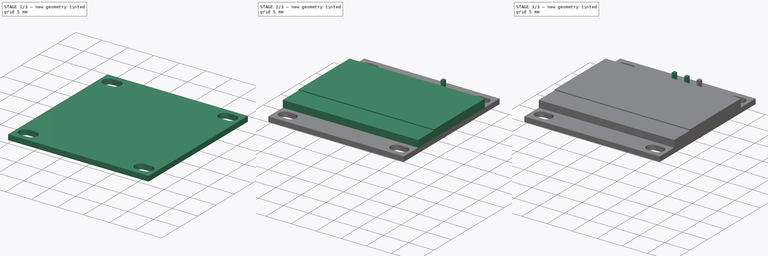
[diagram: build sequence overview — one tinted view per stage of 3, left to right]
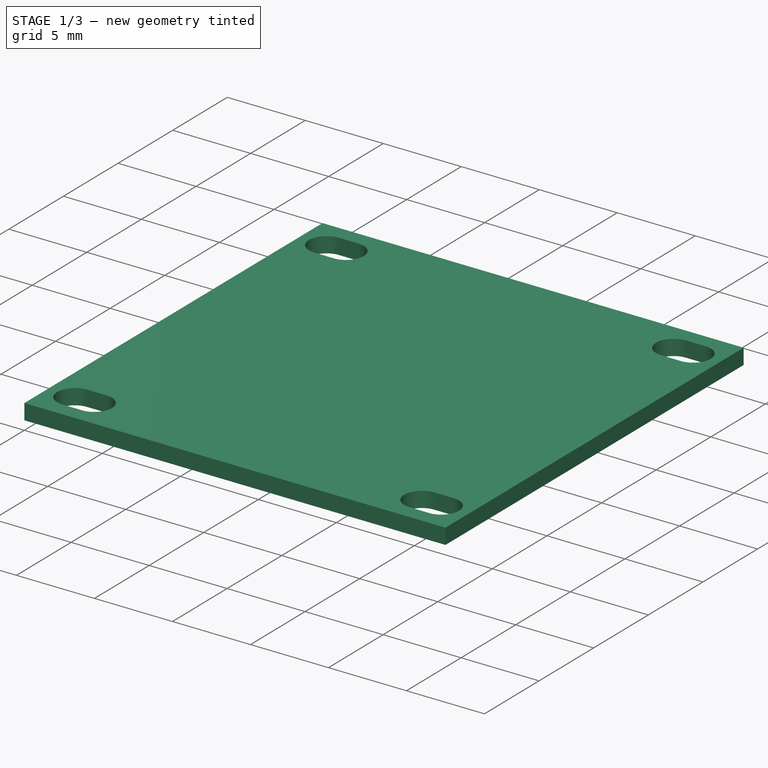
[diagram: stage 1 of 3 — iso view after this stage's code; geometry added in this stage tinted green]
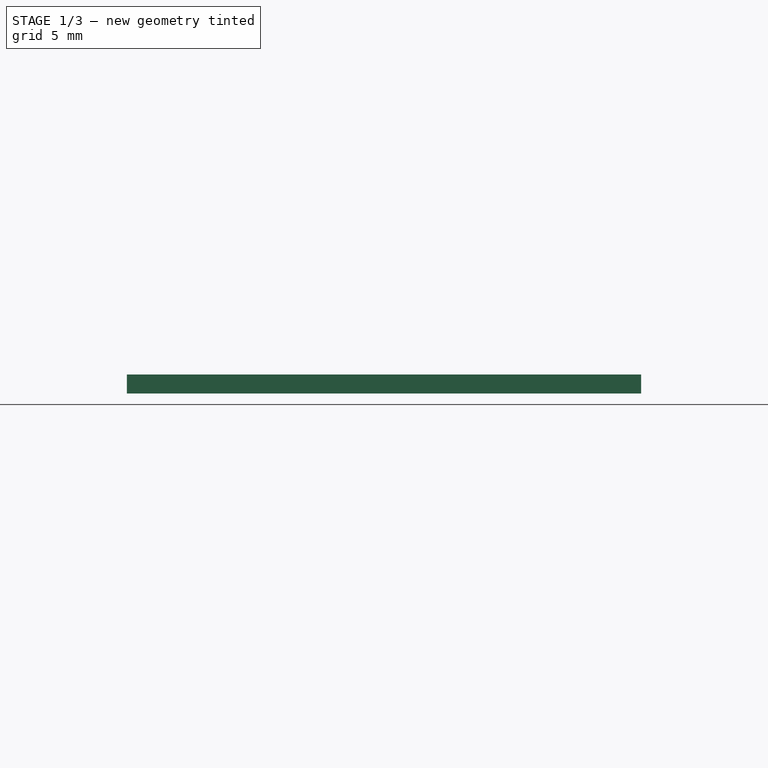
[diagram: stage 1 of 3 — front view after this stage's code; geometry added in this stage tinted green]
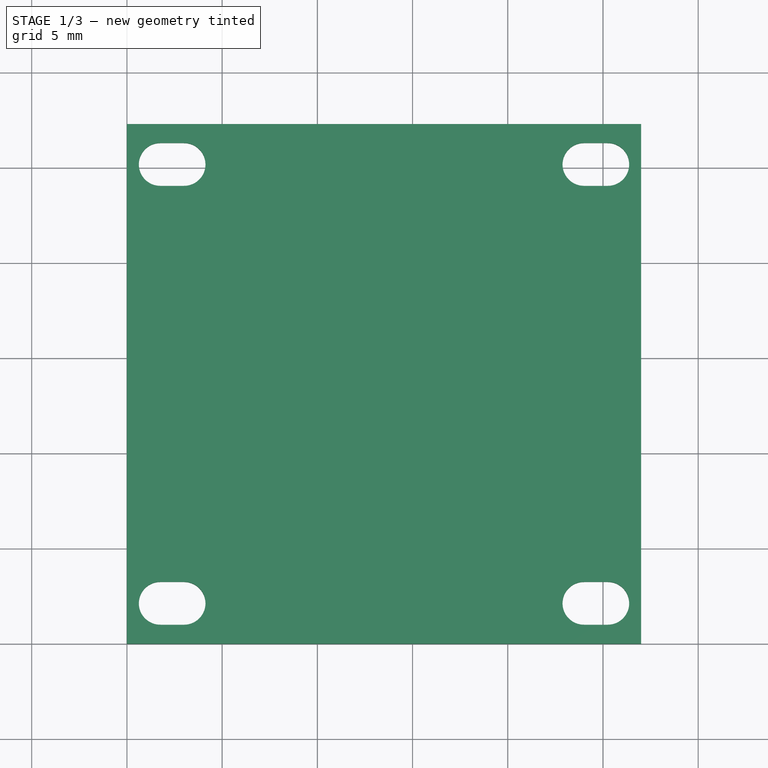
[diagram: stage 1 of 3 — top view after this stage's code; geometry added in this stage tinted green]
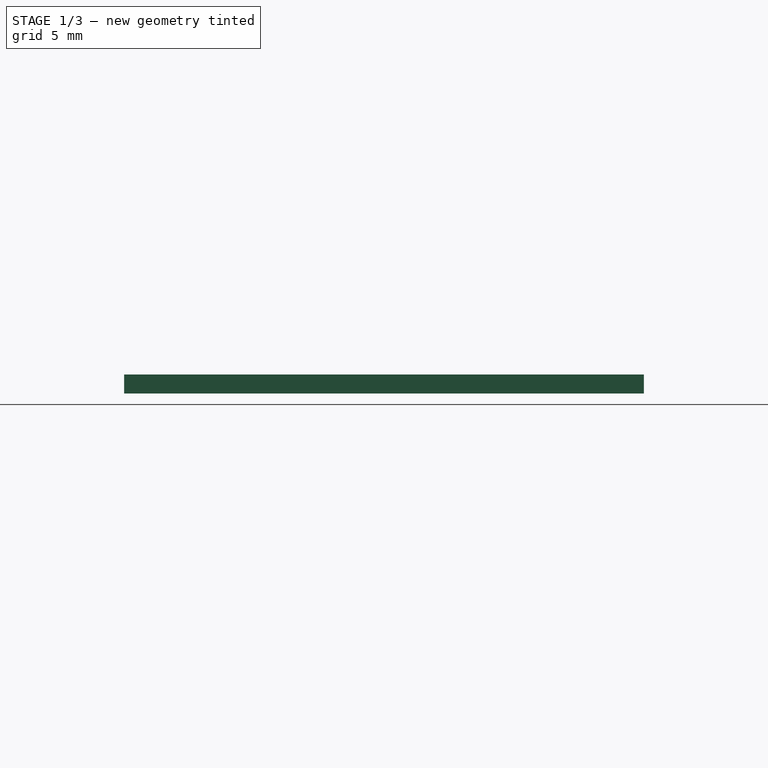
[diagram: stage 1 of 3 — right view after this stage's code; geometry added in this stage tinted green]
FCSTD DOCUMENT  (FreeCAD 0.16R6612 (Git))
Label: OLED
License: All rights reserved
LicenseURL: http://en.wikipedia.org/wiki/All_rights_reserved
objects: Sketcher::SketchObject×4, Part::FeaturePython×3, PartDesign::Pad×2, PartDesign::Pocket×2, Part::Feature×1
note: 16 computed .brp shape members not serialized (recipe doc carries the construction recipe); baked Part::Feature solids carry a one-line shape summary decoded from their .brp

FEATURE [Sketcher::SketchObject] Sketch
  sketch-geometry (4):
    g0: LineSegment StartX=0 StartY=0 StartZ=0 EndX=27 EndY=0 EndZ=0
    g1: LineSegment StartX=27 StartY=0 StartZ=0 EndX=27 EndY=27.3 EndZ=0
    g2: LineSegment StartX=27 StartY=27.3 StartZ=0 EndX=0 EndY=27.3 EndZ=0
    g3: LineSegment StartX=0 StartY=27.3 StartZ=0 EndX=0 EndY=0 EndZ=0
  constraints (11):
    c: Coincident(g0,g1)
    c: Coincident(g1,g2)
    c: Coincident(g2,g3)
    c: Coincident(g3,g0)
    c: Horizontal(g0)
    c: Horizontal(g2)
    c: Vertical(g1)
    c: Vertical(g3)
    c: Coincident(g0,g-1)
    c: DistanceX(g2) = -27
    c: DistanceY(g1) = 27.3
FEATURE [PartDesign::Pad] Pad
  Length = 1
  Length2 = 100
  Sketch = -> Sketch
  Type = 0
FEATURE [Sketcher::SketchObject] Sketch001
  ExternalGeometry = -> [Pad]
  Placement = pos=(0,0,1) rot=(0,0,1;0rad)
  Support = -> Pad [Face6]
  sketch-geometry (16):
    g0: ArcOfCircle CenterX=1.75 CenterY=25.175 CenterZ=0 NormalX=0 NormalY=0 NormalZ=1 Radius=1.125 StartAngle=1.5708 EndAngle=4.71239
    g1: ArcOfCircle CenterX=3 CenterY=25.175 CenterZ=0 NormalX=0 NormalY=0 NormalZ=1 Radius=1.125 StartAngle=4.71239 EndAngle=7.85398
    g2: LineSegment StartX=1.75 StartY=24.05 StartZ=0 EndX=3 EndY=24.05 EndZ=0
    g3: LineSegment StartX=1.75 StartY=26.3 StartZ=0 EndX=3 EndY=26.3 EndZ=0
    g4: ArcOfCircle CenterX=24 CenterY=25.175 CenterZ=0 NormalX=0 NormalY=0 NormalZ=1 Radius=1.125 StartAngle=1.5708 EndAngle=4.71239
    g5: ArcOfCircle CenterX=25.25 CenterY=25.175 CenterZ=0 NormalX=0 NormalY=0 NormalZ=1 Radius=1.125 StartAngle=4.71239 EndAngle=7.85398
    g6: LineSegment StartX=24 StartY=24.05 StartZ=0 EndX=25.25 EndY=24.05 EndZ=0
    g7: LineSegment StartX=24 StartY=26.3 StartZ=0 EndX=25.25 EndY=26.3 EndZ=0
    g8: ArcOfCircle CenterX=1.75 CenterY=2.125 CenterZ=0 NormalX=0 NormalY=0 NormalZ=1 Radius=1.125 StartAngle=1.5708 EndAngle=4.71239
    g9: ArcOfCircle CenterX=3 CenterY=2.125 CenterZ=0 NormalX=0 NormalY=0 NormalZ=1 Radius=1.125 StartAngle=4.71239 EndAngle=7.85398
    g10: LineSegment StartX=1.75 StartY=1 StartZ=0 EndX=3 EndY=1 EndZ=0
    g11: LineSegment StartX=1.75 StartY=3.25 StartZ=0 EndX=3 EndY=3.25 EndZ=0
    g12: ArcOfCircle CenterX=24 CenterY=2.125 CenterZ=0 NormalX=0 NormalY=0 NormalZ=1 Radius=1.125 StartAngle=1.5708 EndAngle=4.71239
    g13: ArcOfCircle CenterX=25.25 CenterY=2.125 CenterZ=0 NormalX=0 NormalY=0 NormalZ=1 Radius=1.125 StartAngle=4.71239 EndAngle=7.85398
    g14: LineSegment StartX=24 StartY=1 StartZ=0 EndX=25.25 EndY=1 EndZ=0
    g15: LineSegment StartX=24 StartY=3.25 StartZ=0 EndX=25.25 EndY=3.25 EndZ=0
  constraints (40):
    c: Tangent(g0,g3) = 1.5708
    c: Tangent(g0,g2) = -1.5708
    c: Tangent(g2,g1) = -1.5708
    c: Tangent(g3,g1) = 1.5708
    c: Horizontal(g2)
    c: Equal(g0,g1)
    c: DistanceY(g0,g0) = -2.25
    c: DistanceX(g0,g1) = 1.25
    c: DistanceY(g-3,g0) = -1
    c: DistanceX(g0,g-3) = -1.75
    c: Tangent(g4,g7) = 1.5708
    c: Tangent(g4,g6) = -1.5708
    c: Tangent(g6,g5) = -1.5708
    c: Tangent(g7,g5) = 1.5708
    c: Horizontal(g6)
    c: Equal(g4,g5)
    c: Equal(g6,g2)
    c: Equal(g4,g0)
    c: DistanceX(g-3,g5) = -1.75
    c: DistanceY(g5,g-3) = 1
    c: Tangent(g8,g11) = 1.5708
    c: Tangent(g8,g10) = -1.5708
    c: Tangent(g10,g9) = -1.5708
    c: Tangent(g11,g9) = 1.5708
    c: Horizontal(g10)
    c: Equal(g8,g9)
    c: Equal(g2,g11)
    c: Equal(g9,g0)
    c: DistanceX(g-1,g8) = 1.75
    c: DistanceY(g-1,g8) = 1
    c: Tangent(g12,g15) = 1.5708
    c: Tangent(g12,g14) = -1.5708
    c: Tangent(g14,g13) = -1.5708
    c: Tangent(g15,g13) = 1.5708
    c: Horizontal(g14)
    c: Equal(g12,g13)
    c: Equal(g15,g10)
    c: Equal(g12,g9)
    c: DistanceX(g13,g-4) = 1.75
    c: DistanceY(g13,g-4) = -1
FEATURE [PartDesign::Pocket] Pocket
  Length = 5
  Sketch = -> Sketch001
  Type = 1
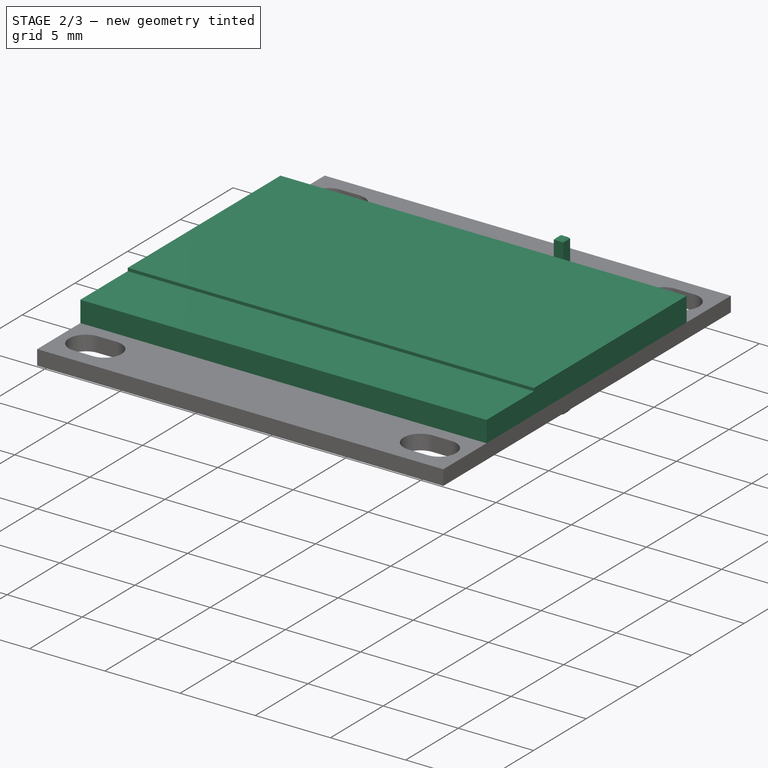
[diagram: stage 2 of 3 — iso view after this stage's code; geometry added in this stage tinted green]
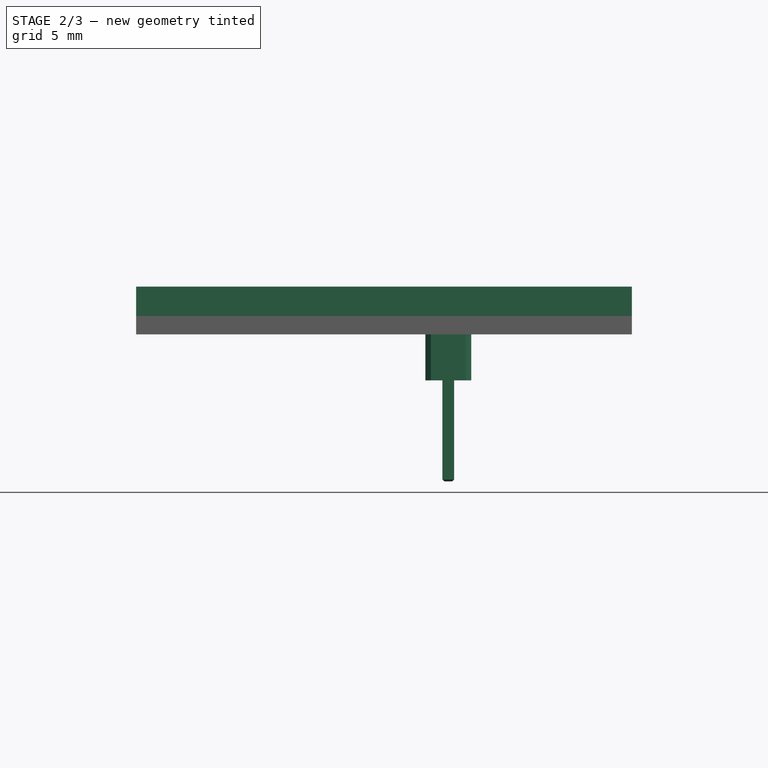
[diagram: stage 2 of 3 — front view after this stage's code; geometry added in this stage tinted green]
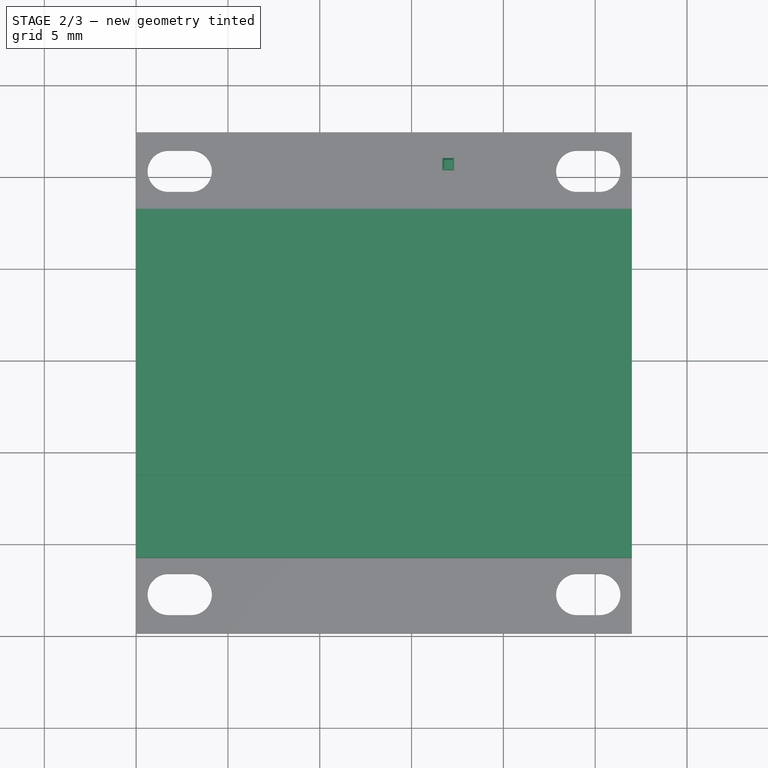
[diagram: stage 2 of 3 — top view after this stage's code; geometry added in this stage tinted green]
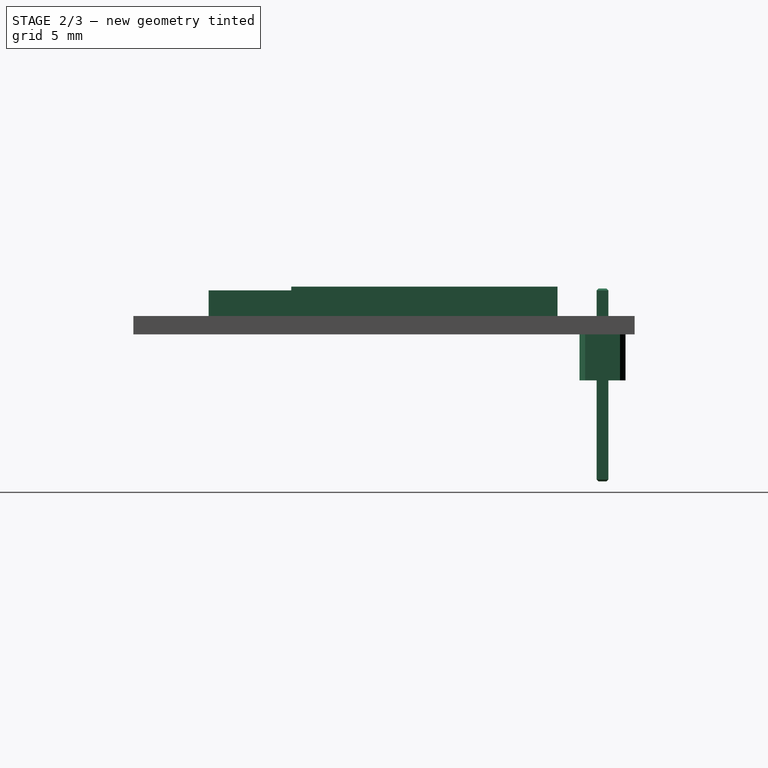
[diagram: stage 2 of 3 — right view after this stage's code; geometry added in this stage tinted green]
FEATURE [Sketcher::SketchObject] Sketch002
  ExternalGeometry = -> [Pocket]
  Placement = pos=(0,0,1) rot=(0,0,1;0rad)
  Support = -> Pocket [Face5]
  sketch-geometry (4):
    g0: LineSegment StartX=0 StartY=23.1 StartZ=0 EndX=27 EndY=23.1 EndZ=0
    g1: LineSegment StartX=27 StartY=23.1 StartZ=0 EndX=27 EndY=4.1 EndZ=0
    g2: LineSegment StartX=27 StartY=4.1 StartZ=0 EndX=0 EndY=4.1 EndZ=0
    g3: LineSegment StartX=0 StartY=4.1 StartZ=0 EndX=0 EndY=23.1 EndZ=0
  constraints (12):
    c: Coincident(g0,g1)
    c: Coincident(g1,g2)
    c: Coincident(g2,g3)
    c: Coincident(g3,g0)
    c: Horizontal(g0)
    c: Horizontal(g2)
    c: Vertical(g1)
    c: Vertical(g3)
    c: PointOnObject(g0,g-2)
    c: PointOnObject(g1,g-4)
    c: DistanceY(g0,g-4) = 4.2
    c: DistanceY(g3) = 19
FEATURE [PartDesign::Pad] Pad001
  Length = 1.6
  Length2 = 100
  Sketch = -> Sketch002
  Type = 0
FEATURE [Part::FeaturePython] Clone002  label="Clone of header_pin002"  # Draft clone (typed FeaturePython)
  Objects = -> [Chamfer002001]
  Placement = pos=(15.75,24.3,-2.5) rot=(0,0,1;0rad)
  Scale = (1,1,1)
  expr: Placement.Base.x = 8.25 + 7.5
FEATURE [Sketcher::SketchObject] Sketch005
  ExternalGeometry = -> [Pad001]
  Placement = pos=(0,0,2.6) rot=(0,0,1;0rad)
  Support = -> Pad001 [Face28]
  sketch-geometry (4):
    g0: LineSegment StartX=0 StartY=4.1 StartZ=0 EndX=27 EndY=4.1 EndZ=0
    g1: LineSegment StartX=27 StartY=4.1 StartZ=0 EndX=27 EndY=8.6 EndZ=0
    g2: LineSegment StartX=27 StartY=8.6 StartZ=0 EndX=0 EndY=8.6 EndZ=0
    g3: LineSegment StartX=0 StartY=8.6 StartZ=0 EndX=0 EndY=4.1 EndZ=0
  constraints (11):
    c: Coincident(g0,g1)
    c: Coincident(g1,g2)
    c: Coincident(g2,g3)
    c: Coincident(g3,g0)
    c: Horizontal(g0)
    c: Horizontal(g2)
    c: Vertical(g1)
    c: Vertical(g3)
    c: Coincident(g0,g-4)
    c: PointOnObject(g1,g-5)
    c: DistanceY(g1,g-5) = 14.5
FEATURE [PartDesign::Pocket] Pocket001
  Length = 0.2
  Sketch = -> Sketch005
  Type = 0
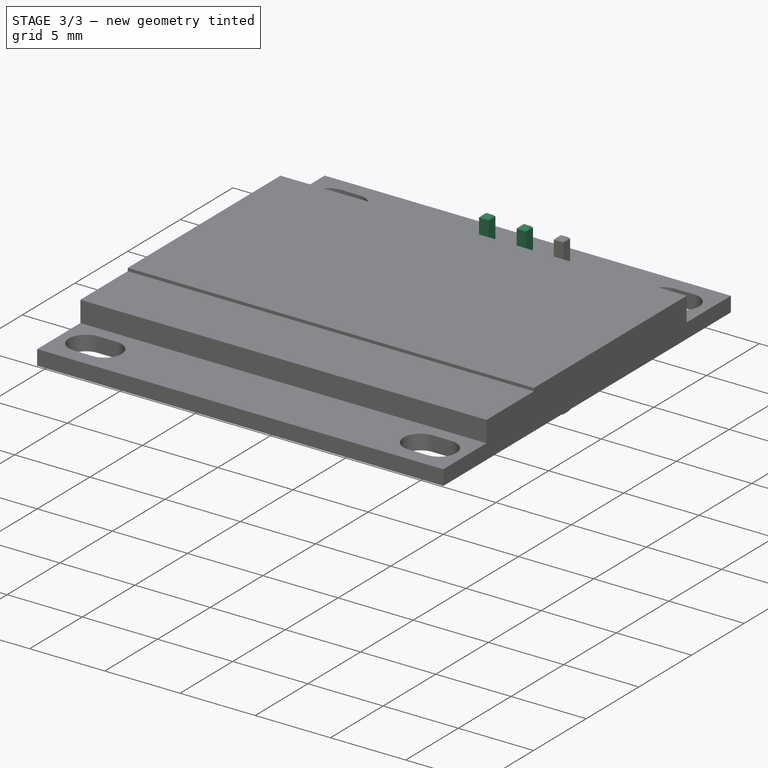
[diagram: stage 3 of 3 — iso view after this stage's code; geometry added in this stage tinted green]
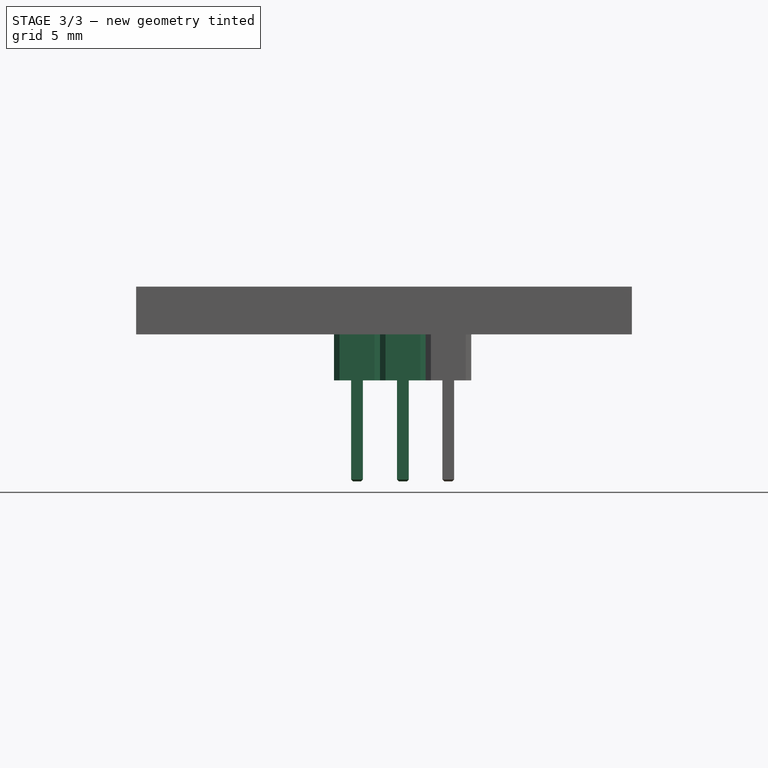
[diagram: stage 3 of 3 — front view after this stage's code; geometry added in this stage tinted green]
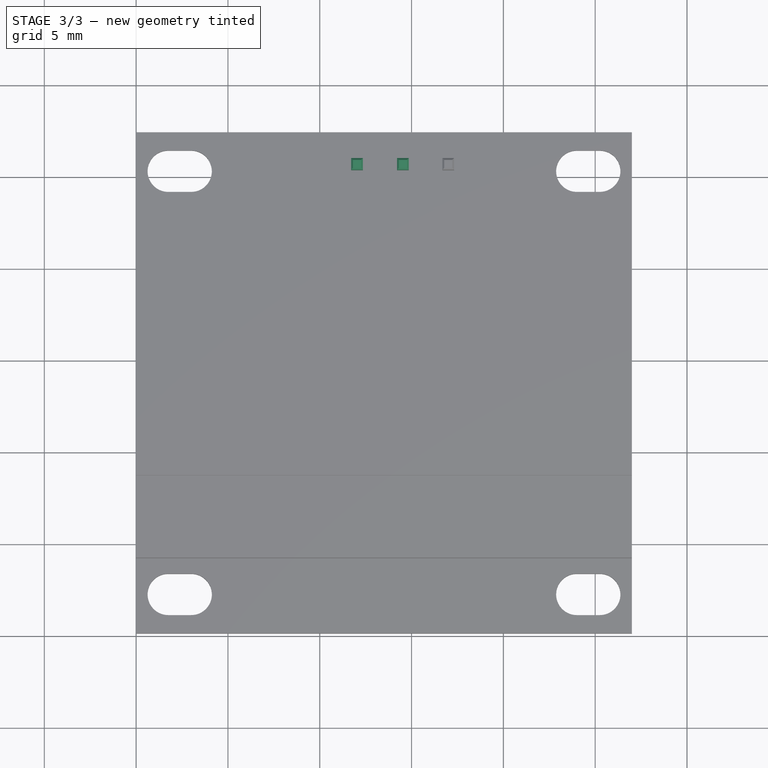
[diagram: stage 3 of 3 — top view after this stage's code; geometry added in this stage tinted green]
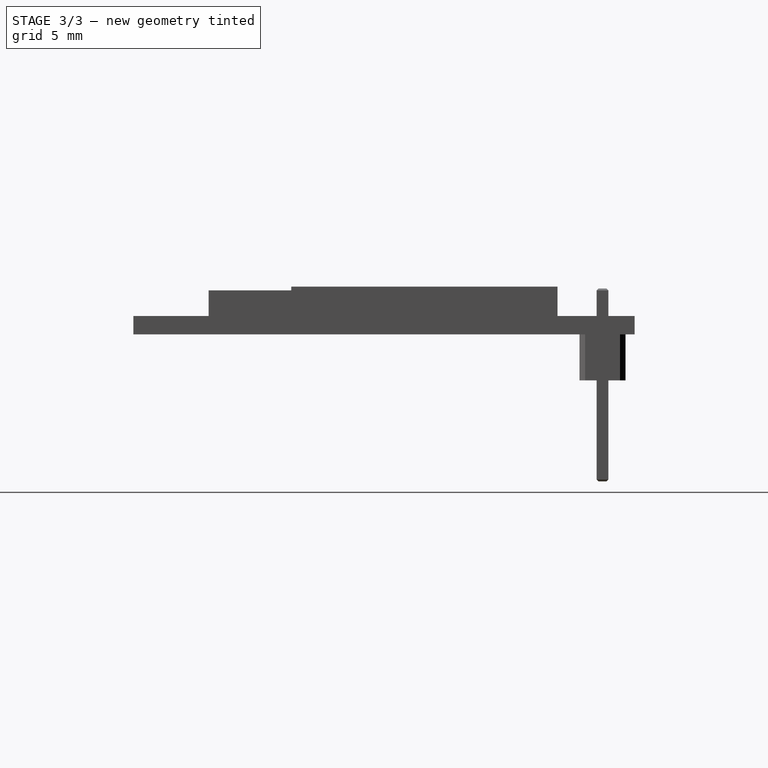
[diagram: stage 3 of 3 — right view after this stage's code; geometry added in this stage tinted green]
FEATURE [Part::Feature] Chamfer002001  label="header_pin"
  Placement = pos=(8.28,24.3,-2.5) rot=(0,0,1;0rad)
  shape: bbox 2.5 x 2.5 x 10.5 mm, 28 faces (baked)
FEATURE [Part::FeaturePython] Clone  label="Clone of header_pin"  # Draft clone (typed FeaturePython)
  Objects = -> [Chamfer002001]
  Placement = pos=(10.78,24.3,-2.5) rot=(0,0,1;0rad)
  Scale = (1,1,1)
  expr: Placement.Base.x = 8.279999999999999 + 2.5
FEATURE [Part::FeaturePython] Clone001  label="Clone of header_pin001"  # Draft clone (typed FeaturePython)
  Objects = -> [Chamfer002001]
  Placement = pos=(13.28,24.3,-2.5) rot=(0,0,1;0rad)
  Scale = (1,1,1)
  expr: Placement.Base.x = 8.279999999999999 + 5
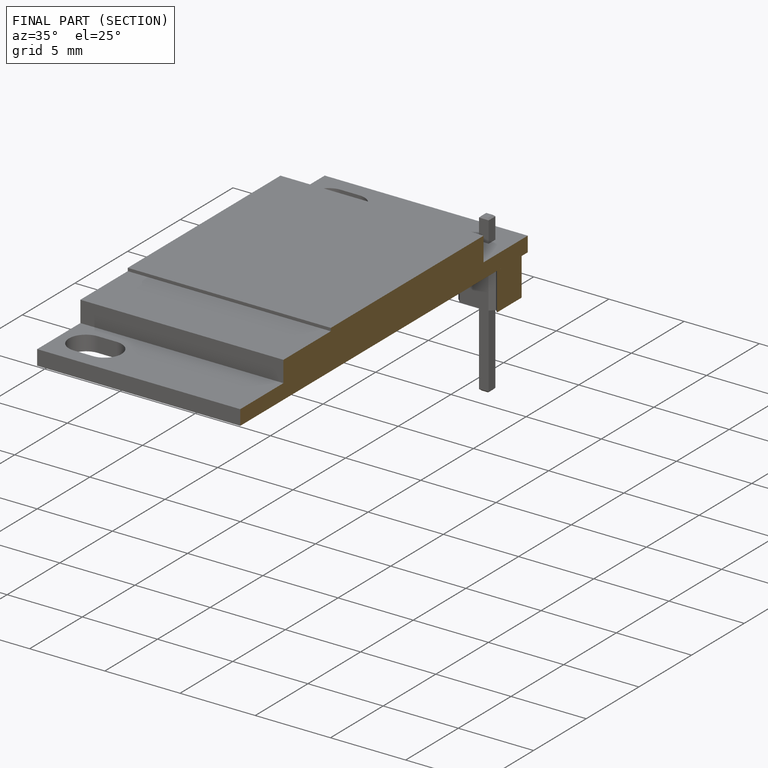
[diagram: finished part — half-section view (interior)]
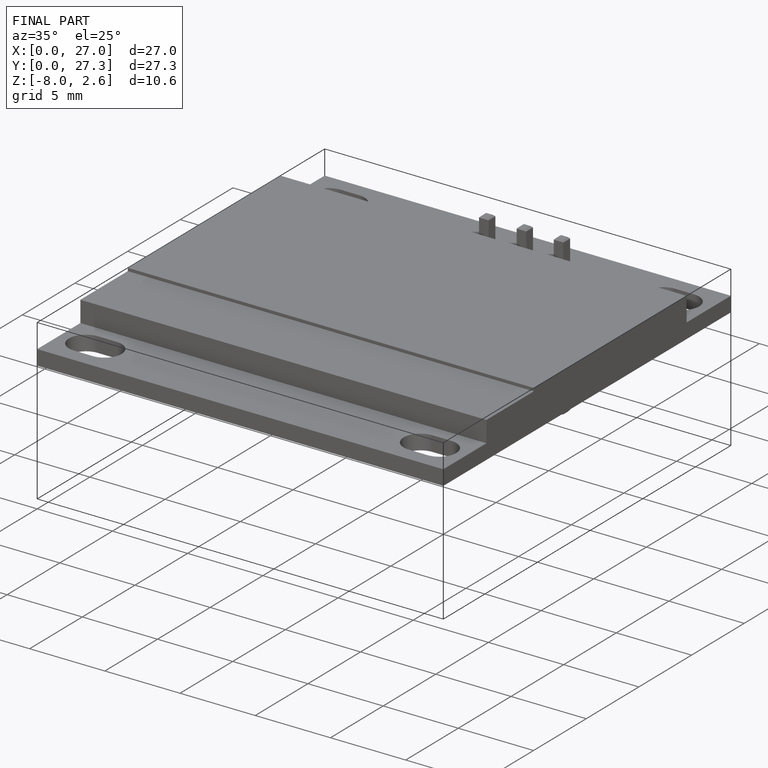
[diagram: finished part — iso view with bounding-box wireframe]
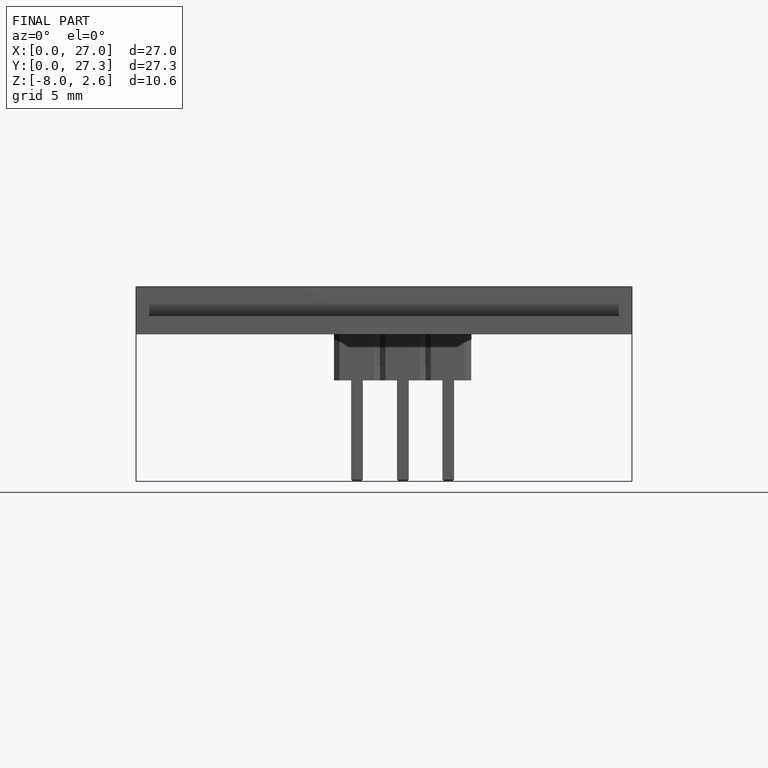
[diagram: finished part — front view with bounding-box wireframe]
